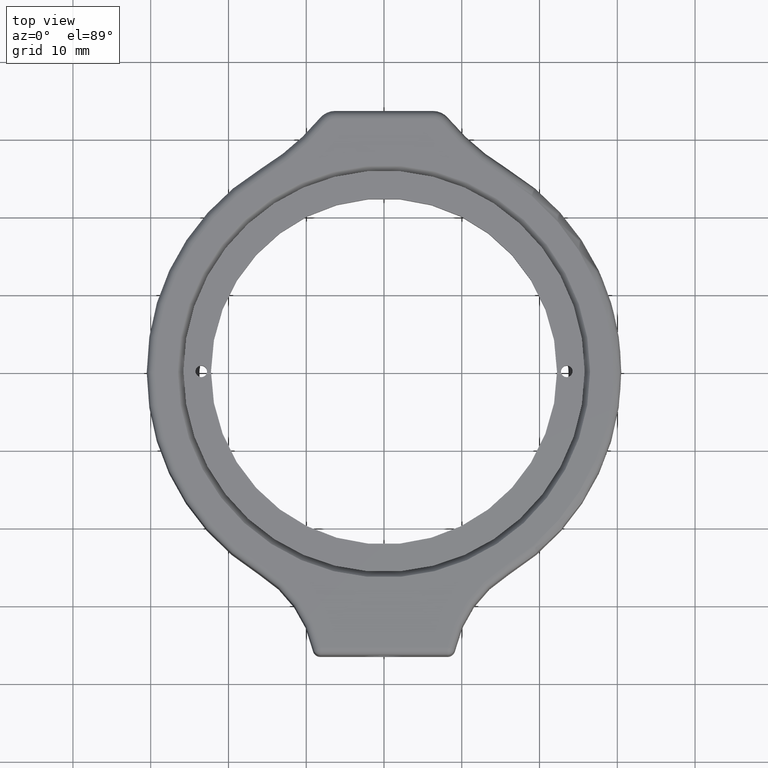
[diagram: clean part render]
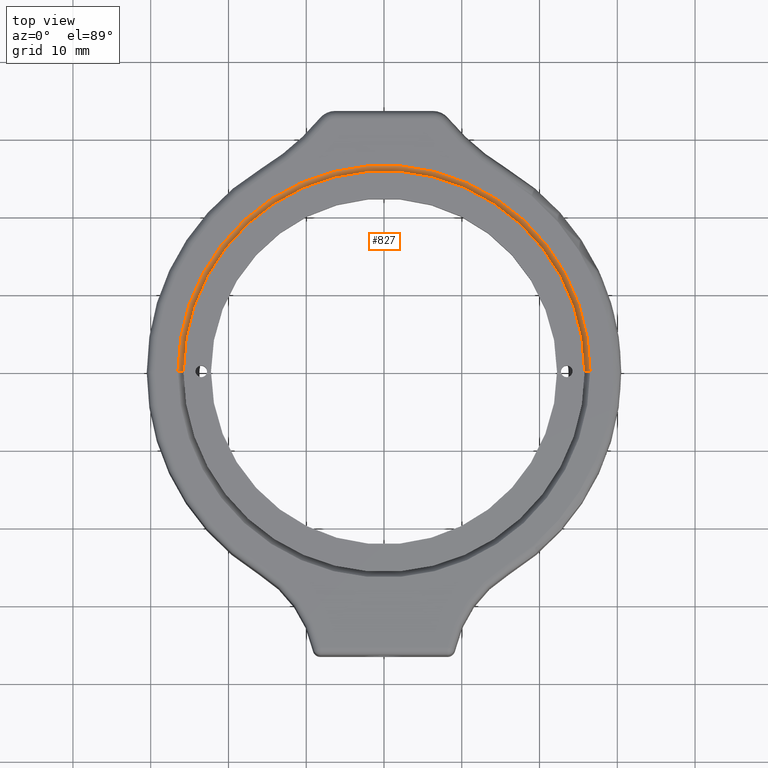
[diagram: same view with one face highlighted and labeled with its STEP entity id]
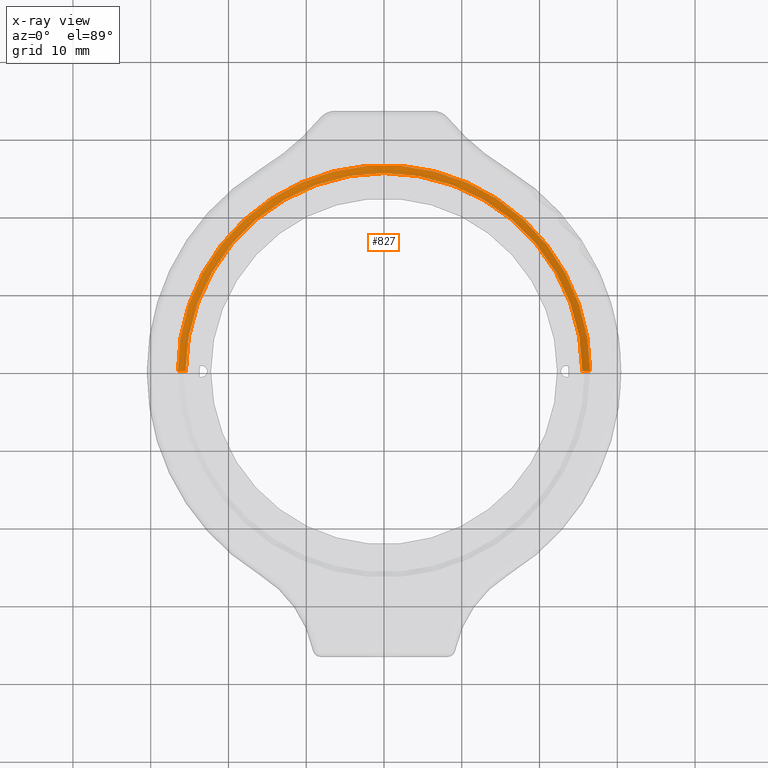
[diagram: x-ray of the same camera — body ghosted, the highlighted face saturated]
A machine part, top view. The second image highlights one B-rep face of the part: STEP entity #827.
The next image is the same camera in x-ray: the body ghosted, the highlighted face saturated — about 0% of this face is hidden behind the body in this view.
In plain terms, the highlighted conical surface has half-angle 45 deg.
Its self-contained STEP definition (entity closure, byte-faithful):
#95 = ORIENTED_EDGE ( 'NONE', *, *, #112, .F. ) ;
#112 = EDGE_CURVE ( 'NONE', #1557, #2057, #1244, .T. ) ;
#132 = ORIENTED_EDGE ( 'NONE', *, *, #1669, .T. ) ;
#160 = ORIENTED_EDGE ( 'NONE', *, *, #317, .F. ) ;
#189 = CARTESIAN_POINT ( 'NONE',  ( 0.0000000000000000000, 0.0000000000000000000, 0.0000000000000000000 ) ) ;
#191 = VECTOR ( 'NONE', #1729, 999.9999999999998900 ) ;
#262 = AXIS2_PLACEMENT_3D ( 'NONE', #2148, #1981, #1814 ) ;
#317 = EDGE_CURVE ( 'NONE', #2057, #705, #520, .T. ) ;
#387 = AXIS2_PLACEMENT_3D ( 'NONE', #1507, #1499, #1846 ) ;
#396 = CONICAL_SURFACE ( 'NONE', #1248, 26.49999999999998900, 0.7853981633974465000 ) ;
#520 = LINE ( 'NONE', #2080, #191 ) ;
#530 = EDGE_CURVE ( 'NONE', #705, #752, #1401, .T. ) ;
#705 = VERTEX_POINT ( 'NONE', #1716 ) ;
#721 = ORIENTED_EDGE ( 'NONE', *, *, #530, .F. ) ;
#752 = VERTEX_POINT ( 'NONE', #909 ) ;
#803 = VECTOR ( 'NONE', #1578, 999.9999999999998900 ) ;
#827 = ADVANCED_FACE ( 'NONE', ( #1726 ), #396, .F. ) ;
#909 = CARTESIAN_POINT ( 'NONE',  ( 26.49999999999998900, -2.059463710679664800E-014, 0.0000000000000000000 ) ) ;
#943 = LINE ( 'NONE', #2089, #803 ) ;
#944 = EDGE_LOOP ( 'NONE', ( #160, #95, #132, #721 ) ) ;
#1244 = CIRCLE ( 'NONE', #387, 25.49999999999999600 ) ;
#1248 = AXIS2_PLACEMENT_3D ( 'NONE', #189, #2112, #1754 ) ;
#1333 = CARTESIAN_POINT ( 'NONE',  ( -25.49999999999999600, 2.294033032738479100E-014, -0.9999999999999974500 ) ) ;
#1401 = CIRCLE ( 'NONE', #262, 26.49999999999998900 ) ;
#1499 = DIRECTION ( 'NONE',  ( -0.0000000000000000000, -0.0000000000000000000, 1.000000000000000000 ) ) ;
#1507 = CARTESIAN_POINT ( 'NONE',  ( 0.0000000000000000000, 0.0000000000000000000, -0.9999999999999974500 ) ) ;
#1557 = VERTEX_POINT ( 'NONE', #2075 ) ;
#1578 = DIRECTION ( 'NONE',  ( 0.7071067811865462400, -5.495323605393203800E-016, 0.7071067811865489100 ) ) ;
#1669 = EDGE_CURVE ( 'NONE', #1557, #752, #943, .T. ) ;
#1716 = CARTESIAN_POINT ( 'NONE',  ( -26.49999999999998900, 2.383995112453712900E-014, 0.0000000000000000000 ) ) ;
#1726 = FACE_OUTER_BOUND ( 'NONE', #944, .T. ) ;
#1729 = DIRECTION ( 'NONE',  ( -0.7071067811865462400, 6.361279661628695400E-016, 0.7071067811865489100 ) ) ;
#1754 = DIRECTION ( 'NONE',  ( 1.000000000000000000, -7.771561172376096800E-016, 0.0000000000000000000 ) ) ;
#1814 = DIRECTION ( 'NONE',  ( -1.000000000000000000, 7.771561172376096800E-016, 0.0000000000000000000 ) ) ;
#1846 = DIRECTION ( 'NONE',  ( -1.000000000000000000, 7.771561172376096800E-016, 0.0000000000000000000 ) ) ;
#1981 = DIRECTION ( 'NONE',  ( 0.0000000000000000000, 0.0000000000000000000, -1.000000000000000000 ) ) ;
#2057 = VERTEX_POINT ( 'NONE', #1333 ) ;
#2075 = CARTESIAN_POINT ( 'NONE',  ( 25.49999999999999600, -1.981748098955904400E-014, -0.9999999999999974500 ) ) ;
#2080 = CARTESIAN_POINT ( 'NONE',  ( -26.49999999999998900, 2.383995112453712900E-014, 0.0000000000000000000 ) ) ;
#2089 = CARTESIAN_POINT ( 'NONE',  ( 26.49999999999998900, -2.059463710679664800E-014, 0.0000000000000000000 ) ) ;
#2112 = DIRECTION ( 'NONE',  ( -0.0000000000000000000, 0.0000000000000000000, 1.000000000000000000 ) ) ;
#2148 = CARTESIAN_POINT ( 'NONE',  ( 0.0000000000000000000, 0.0000000000000000000, 0.0000000000000000000 ) ) ;